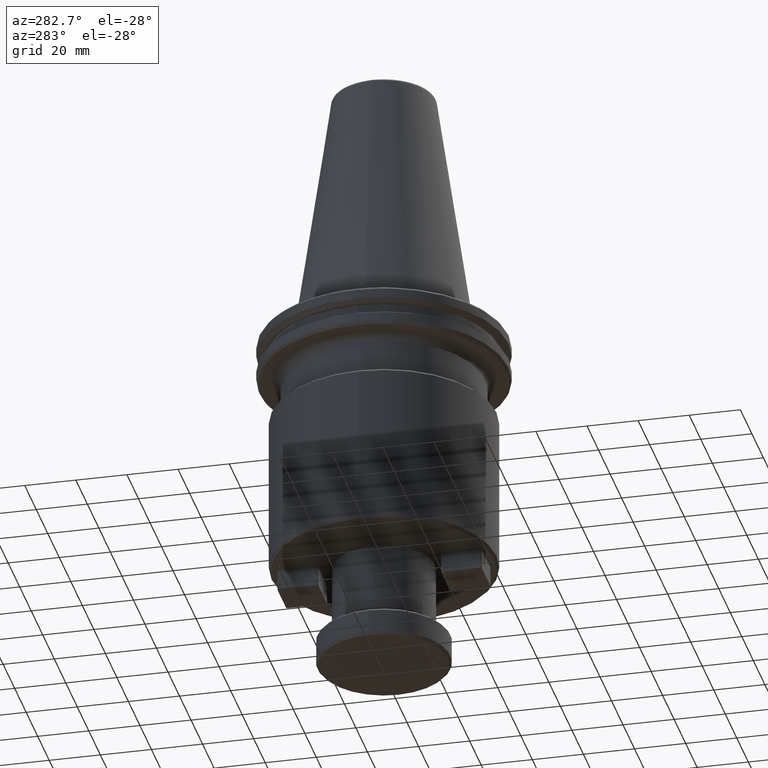
[diagram: clean part render]
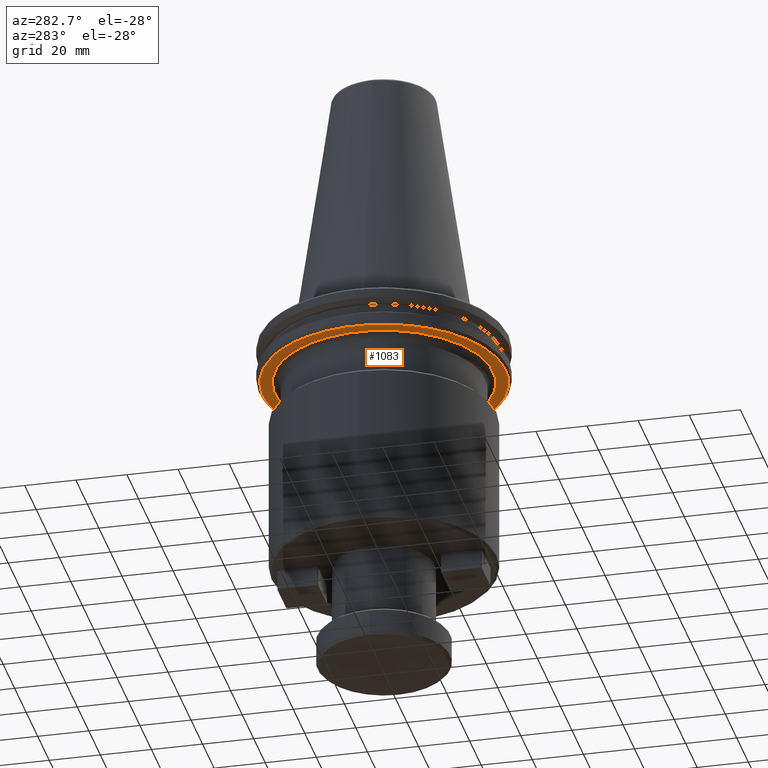
[diagram: same view with one face highlighted and labeled with its STEP entity id]
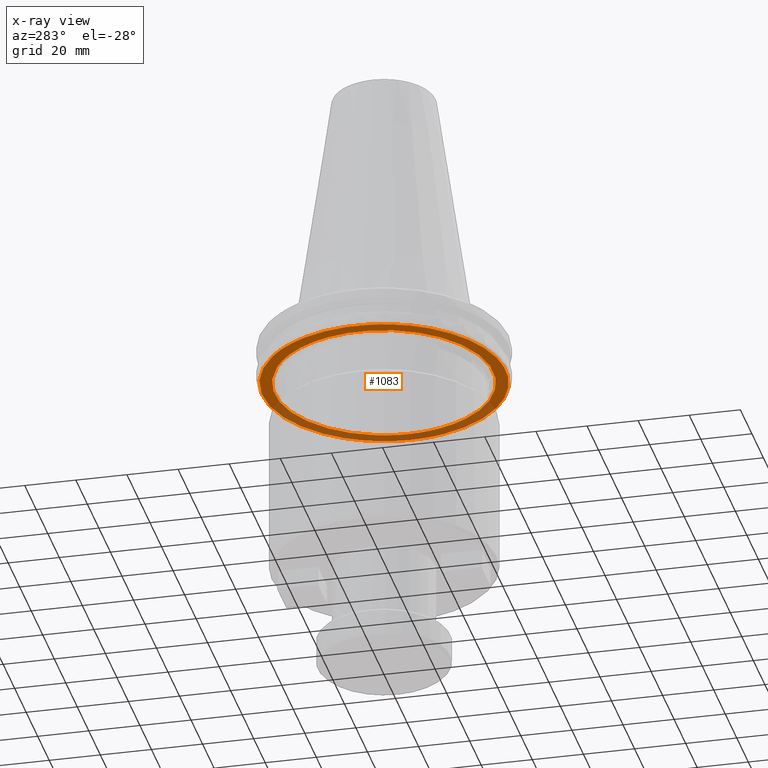
[diagram: x-ray of the same camera — body ghosted, the highlighted face saturated]
A machine part, auxiliary view. The second image highlights one B-rep face of the part: STEP entity #1083.
The next image is the same camera in x-ray: the body ghosted, the highlighted face saturated — about 36% of this face is hidden behind the body in this view.
In plain terms, the highlighted planar face has unit normal (0, 0, -1).
Its self-contained STEP definition (entity closure, byte-faithful):
#9 = CARTESIAN_POINT ( 'NONE',  ( 1.308120951141947600, 47.57091866719089500, -19.10000000000000900 ) ) ;
#14 = CARTESIAN_POINT ( 'NONE',  ( 19.53216097461157500, 43.39084235519819500, -19.10000000000000100 ) ) ;
#21 = EDGE_CURVE ( 'NONE', #2638, #4118, #694, .T. ) ;
#38 = CARTESIAN_POINT ( 'NONE',  ( -24.34035405470804400, -35.16348444868524600, -19.10000000000001200 ) ) ;
#45 = CARTESIAN_POINT ( 'NONE',  ( -13.10719197337290100, -40.69114334756636000, -19.10000000000000500 ) ) ;
#63 = CARTESIAN_POINT ( 'NONE',  ( 43.77572545363726400, 18.65419956364984300, -19.10000000000000100 ) ) ;
#67 = CARTESIAN_POINT ( 'NONE',  ( -35.11321675349054100, -24.38502773732895800, -19.09999999999999800 ) ) ;
#74 = CARTESIAN_POINT ( 'NONE',  ( -34.99395148945028200, -24.55587416569219900, -19.10000000000000900 ) ) ;
#80 = CARTESIAN_POINT ( 'NONE',  ( -33.24276643486475500, -26.92230129808137900, -19.10000000000000500 ) ) ;
#84 = CARTESIAN_POINT ( 'NONE',  ( -31.24625559330909400, -29.17845600040271800, -19.10000000000000500 ) ) ;
#91 = CARTESIAN_POINT ( 'NONE',  ( -36.93605622581585400, 30.00005778855096500, -19.10000000000000500 ) ) ;
#95 = CARTESIAN_POINT ( 'NONE',  ( -30.75028115606317100, -29.69854373433494400, -19.10000000000000500 ) ) ;
#100 = CARTESIAN_POINT ( 'NONE',  ( -37.87782567050951600, -19.85171631617539500, -19.10000000000000900 ) ) ;
#105 = CARTESIAN_POINT ( 'NONE',  ( -38.98676025535058200, 27.47508662005105500, -19.10000000000000500 ) ) ;
#107 = CARTESIAN_POINT ( 'NONE',  ( -40.75990645542658800, 24.76850955879668000, -19.10000000000000500 ) ) ;
#109 = CARTESIAN_POINT ( 'NONE',  ( -28.91818155370820900, -31.57123147113430400, -19.10000000000000500 ) ) ;
#111 = CARTESIAN_POINT ( 'NONE',  ( -38.38743598118532700, -18.81404928831977600, -19.10000000000001200 ) ) ;
#114 = CARTESIAN_POINT ( 'NONE',  ( -43.75094089819072700, 18.99202807367705100, -19.10000000000000500 ) ) ;
#118 = CARTESIAN_POINT ( 'NONE',  ( -38.43129521049379300, -18.72429301385500000, -19.10000000000000500 ) ) ;
#126 = CARTESIAN_POINT ( 'NONE',  ( -40.77303030190422800, -12.84999999999999600, -19.10000000000000500 ) ) ;
#128 = CARTESIAN_POINT ( 'NONE',  ( -45.81650991385544800, 12.85002475276266100, -19.10000000000000500 ) ) ;
#129 = CARTESIAN_POINT ( 'NONE',  ( -38.78011900583150900, -17.99429852049237500, -19.10000000000000500 ) ) ;
#130 = CARTESIAN_POINT ( 'NONE',  ( -39.90511139189728600, -15.40103122614322700, -19.10000000000000900 ) ) ;
#132 = CARTESIAN_POINT ( 'NONE',  ( -45.81650991385544800, 12.85002475276266100, -19.10000000000000500 ) ) ;
#146 = CARTESIAN_POINT ( 'NONE',  ( -38.57812664387181200, -18.42072283261540000, -19.10000000000000500 ) ) ;
#151 = CARTESIAN_POINT ( 'NONE',  ( -6.682308184501293300, -42.22461275955365100, -19.10000000000000500 ) ) ;
#198 = CARTESIAN_POINT ( 'NONE',  ( -40.44857928600070100, -13.87948257610260900, -19.10000000000000100 ) ) ;
#204 = CARTESIAN_POINT ( 'NONE',  ( -39.17168061750911100, -17.13648969315903500, -19.10000000000000500 ) ) ;
#209 = CARTESIAN_POINT ( 'NONE',  ( -7.407732407718368600, -42.10497084433016800, -19.10000000000000100 ) ) ;
#212 = CARTESIAN_POINT ( 'NONE',  ( -38.40169968781850700, -18.78491552254596200, -19.10000000000001200 ) ) ;
#214 = CARTESIAN_POINT ( 'NONE',  ( -36.93605622581585400, 30.00005778855096500, -19.10000000000000500 ) ) ;
#215 = CARTESIAN_POINT ( 'NONE',  ( -44.93810529641454800, 15.98161967227325800, -19.10000000000000100 ) ) ;
#236 = CARTESIAN_POINT ( 'NONE',  ( 41.24130619434603800, 23.73682857431735700, -19.10000000000000900 ) ) ;
#251 = CARTESIAN_POINT ( 'NONE',  ( 8.736225942364694000, 46.77551714111499600, -19.10000000000000900 ) ) ;
#255 = CARTESIAN_POINT ( 'NONE',  ( -36.04929304986325900, -22.99065513919183000, -19.10000000000000500 ) ) ;
#268 = CARTESIAN_POINT ( 'NONE',  ( -35.23294451998876300, -24.21233512092388200, -19.10000000000000100 ) ) ;
#286 = CARTESIAN_POINT ( 'NONE',  ( -34.29002783248878900, -25.55546331549743400, -19.10000000000000500 ) ) ;
#302 = CARTESIAN_POINT ( 'NONE',  ( -13.44903096726361200, -40.57983575164358600, -19.10000000000000500 ) ) ;
#307 = CARTESIAN_POINT ( 'NONE',  ( -31.92735953056225600, -28.43933888698136100, -19.09999999999999800 ) ) ;
#313 = CARTESIAN_POINT ( 'NONE',  ( 30.13914465955375700, -30.31859192305050500, -19.09999999999999800 ) ) ;
#314 = CIRCLE ( 'NONE', #2199, 42.75000000000000000 ) ;
#317 = CARTESIAN_POINT ( 'NONE',  ( -30.94933951625017000, -29.49106297450573100, -19.10000000000000900 ) ) ;
#320 = ORIENTED_EDGE ( 'NONE', *, *, #2697, .T. ) ;
#325 = CARTESIAN_POINT ( 'NONE',  ( 26.22101210160919700, -33.78434546427677500, -19.10000000000001200 ) ) ;
#327 = CARTESIAN_POINT ( 'NONE',  ( -30.65151194383874900, -29.80047660909688600, -19.10000000000000500 ) ) ;
#340 = CARTESIAN_POINT ( 'NONE',  ( -27.16131520220185200, -33.09474062243979400, -19.10000000000001200 ) ) ;
#361 = CARTESIAN_POINT ( 'NONE',  ( -22.89240081879527000, -36.13714124827903600, -19.10000000000000500 ) ) ;
#362 = CARTESIAN_POINT ( 'NONE',  ( -18.31278783882281800, -38.64620989973166600, -19.10000000000000100 ) ) ;
#374 = CARTESIAN_POINT ( 'NONE',  ( -40.77303030190423500, 12.84999999999999600, -19.10000000000000500 ) ) ;
#377 = CARTESIAN_POINT ( 'NONE',  ( -40.26814082729246300, 14.45201352898498100, -19.10000000000000100 ) ) ;
#380 = CARTESIAN_POINT ( 'NONE',  ( -39.67098268770774900, 16.01866406010090000, -19.09999999999999800 ) ) ;
#386 = CARTESIAN_POINT ( 'NONE',  ( -38.89537753258033300, 17.74136253500364200, -19.10000000000000500 ) ) ;
#389 = CARTESIAN_POINT ( 'NONE',  ( -38.80654519645969500, 17.93486227796686100, -19.10000000000000500 ) ) ;
#395 = CARTESIAN_POINT ( 'NONE',  ( 6.306516208792764600, -42.28228301106862100, -19.10000000000000100 ) ) ;
#396 = CARTESIAN_POINT ( 'NONE',  ( -38.62738141165510800, 18.31757950165020800, -19.10000000000000900 ) ) ;
#399 = CARTESIAN_POINT ( 'NONE',  ( -38.35448263633394100, 18.88946187623949100, -19.10000000000000100 ) ) ;
#401 = CARTESIAN_POINT ( 'NONE',  ( -40.77303030190423500, 12.84999999999999600, -19.10000000000000500 ) ) ;
#404 = CARTESIAN_POINT ( 'NONE',  ( -37.68864714045141500, 20.20849985706439600, -19.10000000000000900 ) ) ;
#411 = CARTESIAN_POINT ( 'NONE',  ( -37.06809382375242000, 21.31278230939982500, -19.10000000000000900 ) ) ;
#412 = CARTESIAN_POINT ( 'NONE',  ( 29.58979462928633500, 37.26625125388741100, -19.10000000000000100 ) ) ;
#415 = ORIENTED_EDGE ( 'NONE', *, *, #2138, .T. ) ;
#421 = CARTESIAN_POINT ( 'NONE',  ( -35.76053762052634300, 23.48625183909900800, -19.10000000000000100 ) ) ;
#423 = CARTESIAN_POINT ( 'NONE',  ( -34.80564638617131800, 24.87952405681922100, -19.10000000000000500 ) ) ;
#429 = CARTESIAN_POINT ( 'NONE',  ( 34.91299446006971900, 32.34739424200956400, -19.10000000000000500 ) ) ;
#435 = CARTESIAN_POINT ( 'NONE',  ( -33.63906394156913400, 26.38219716001825400, -19.10000000000000500 ) ) ;
#436 = CARTESIAN_POINT ( 'NONE',  ( -33.51001478952018400, 26.54591261727828300, -19.10000000000000900 ) ) ;
#440 = CARTESIAN_POINT ( 'NONE',  ( -33.24786635963603500, 26.87353536756146300, -19.10000000000000100 ) ) ;
#441 = CARTESIAN_POINT ( 'NONE',  ( -32.85116470859708200, 27.36191310787617000, -19.10000000000000500 ) ) ;
#446 = CARTESIAN_POINT ( 'NONE',  ( -30.45591075637043600, 30.00000000000000000, -19.10000000000000500 ) ) ;
#455 = CARTESIAN_POINT ( 'NONE',  ( 15.68501188145141100, -39.79789227718243400, -19.10000000000000500 ) ) ;
#456 = VERTEX_POINT ( 'NONE', #1295 ) ;
#457 = CARTESIAN_POINT ( 'NONE',  ( -31.90117447935034200, 28.48006647284002200, -19.10000000000000500 ) ) ;
#469 = CARTESIAN_POINT ( 'NONE',  ( -31.04514906544316200, 29.40180702148823900, -19.10000000000000900 ) ) ;
#481 = CARTESIAN_POINT ( 'NONE',  ( 45.81650991385544800, -12.85002475276266200, -19.10000000000000500 ) ) ;
#494 = CARTESIAN_POINT ( 'NONE',  ( 12.70284536994169700, -40.81917794413808300, -19.10000000000000100 ) ) ;
#509 = CARTESIAN_POINT ( 'NONE',  ( 45.48455499194914600, -14.03326405626546800, -19.10000000000000900 ) ) ;
#528 = CARTESIAN_POINT ( 'NONE',  ( 39.32368075819255900, -16.90778616084236300, -19.10000000000000100 ) ) ;
#571 = CARTESIAN_POINT ( 'NONE',  ( 24.71160396700230100, 40.66470845362184100, -19.10000000000000100 ) ) ;
#583 = CARTESIAN_POINT ( 'NONE',  ( 44.91986629713318300, -15.78375219156720500, -19.10000000000000500 ) ) ;
#602 = CARTESIAN_POINT ( 'NONE',  ( 44.14400760326996200, -17.78327443850042400, -19.10000000000000900 ) ) ;
#607 = CARTESIAN_POINT ( 'NONE',  ( 0.0000000000000000000, 0.0000000000000000000, -19.10000000000000500 ) ) ;
#624 = CARTESIAN_POINT ( 'NONE',  ( -6.473291491602237700, -42.25707160695336700, -19.10000000000000500 ) ) ;
#635 = CARTESIAN_POINT ( 'NONE',  ( 43.72681445219383500, -18.77235708423733500, -19.10000000000000500 ) ) ;
#640 = VERTEX_POINT ( 'NONE', #648 ) ;
#642 = CARTESIAN_POINT ( 'NONE',  ( 43.51090192561964900, -19.26422878767335700, -19.10000000000000500 ) ) ;
#648 = CARTESIAN_POINT ( 'NONE',  ( -45.81650991385551200, -12.85002475276243100, -19.10000000000000500 ) ) ;
#677 = CARTESIAN_POINT ( 'NONE',  ( -17.93959071322330000, 44.09276272953813700, -19.10000000000000500 ) ) ;
#692 = CARTESIAN_POINT ( 'NONE',  ( 5.505373260331320600, -42.39555874781223100, -19.10000000000000100 ) ) ;
#694 = CIRCLE ( 'NONE', #4070, 42.75000000000000000 ) ;
#697 = CARTESIAN_POINT ( 'NONE',  ( 43.40111667457354400, -19.50949723453327400, -19.10000000000000500 ) ) ;
#707 = CARTESIAN_POINT ( 'NONE',  ( 43.35367392674827900, -19.61446926786077700, -19.10000000000000900 ) ) ;
#712 = CARTESIAN_POINT ( 'NONE',  ( 43.32195833354290200, -19.68441884222873400, -19.10000000000000100 ) ) ;
#723 = CARTESIAN_POINT ( 'NONE',  ( 40.77303030190422800, -12.85000000000000000, -19.10000000000000500 ) ) ;
#729 = CARTESIAN_POINT ( 'NONE',  ( 43.30670207663200000, -19.71796403964760100, -19.10000000000000500 ) ) ;
#734 = CARTESIAN_POINT ( 'NONE',  ( 42.75923279348251100, -20.91773531037333100, -19.09999999999999800 ) ) ;
#737 = CARTESIAN_POINT ( 'NONE',  ( 21.41885718054948000, -37.07069513856576000, -19.10000000000000500 ) ) ;
#746 = CARTESIAN_POINT ( 'NONE',  ( 41.89551112233707600, -22.62542822165457000, -19.10000000000000900 ) ) ;
#747 = CARTESIAN_POINT ( 'NONE',  ( -3.155000903945456500, 47.48025286090142300, -19.10000000000000900 ) ) ;
#754 = CARTESIAN_POINT ( 'NONE',  ( 40.76988109011904300, -24.55223597831692900, -19.10000000000000900 ) ) ;
#762 = CARTESIAN_POINT ( 'NONE',  ( 40.17757738670629000, -25.49926469668998100, -19.10000000000000900 ) ) ;
#770 = CARTESIAN_POINT ( 'NONE',  ( 39.87405336317398500, -25.96868526588699000, -19.10000000000000500 ) ) ;
#776 = EDGE_CURVE ( 'NONE', #1558, #2638, #4376, .T. ) ;
#785 = CARTESIAN_POINT ( 'NONE',  ( 39.74239188769742300, -26.16898826911652500, -19.10000000000000100 ) ) ;
#793 = CARTESIAN_POINT ( 'NONE',  ( 39.65426651491182500, -26.30232866222242500, -19.10000000000000100 ) ) ;
#804 = CARTESIAN_POINT ( 'NONE',  ( 39.61125381756983900, -26.36706712308020400, -19.10000000000000900 ) ) ;
#815 = CARTESIAN_POINT ( 'NONE',  ( 38.83538641209704400, -27.52832894059677900, -19.10000000000000100 ) ) ;
#822 = CARTESIAN_POINT ( 'NONE',  ( 12.03304813070790900, -41.02327136606207600, -19.10000000000000500 ) ) ;
#838 = CARTESIAN_POINT ( 'NONE',  ( 37.67621538466903500, -29.11717796348844100, -19.10000000000000500 ) ) ;
#851 = CARTESIAN_POINT ( 'NONE',  ( 36.21214877211318100, -30.88232116246966900, -19.10000000000000500 ) ) ;
#857 = CARTESIAN_POINT ( 'NONE',  ( 17.52728552595517900, -38.99931467364024200, -19.10000000000000900 ) ) ;
#866 = CARTESIAN_POINT ( 'NONE',  ( -15.61238905962479400, 44.95090609541712500, -19.10000000000000500 ) ) ;
#868 = DIRECTION ( 'NONE',  ( -0.0000000000000000000, -0.0000000000000000000, 1.000000000000000000 ) ) ;
#871 = VERTEX_POINT ( 'NONE', #214 ) ;
#875 = CARTESIAN_POINT ( 'NONE',  ( 35.45219036236281300, -31.74276426336218600, -19.10000000000000100 ) ) ;
#882 = EDGE_CURVE ( 'NONE', #4764, #871, #2174, .T. ) ;
#889 = CARTESIAN_POINT ( 'NONE',  ( 35.06522988161949400, -32.16745368915894000, -19.10000000000000500 ) ) ;
#891 = CARTESIAN_POINT ( 'NONE',  ( 42.75000000000000000, 0.0000000000000000000, -19.10000000000000500 ) ) ;
#900 = CARTESIAN_POINT ( 'NONE',  ( 34.89789368790064800, -32.34827798778979300, -19.10000000000000100 ) ) ;
#913 = CARTESIAN_POINT ( 'NONE',  ( 34.78600378371339000, -32.46856408570325000, -19.10000000000000900 ) ) ;
#922 = CARTESIAN_POINT ( 'NONE',  ( 34.73067266395533200, -32.52774543433351800, -19.10000000000000900 ) ) ;
#931 = CARTESIAN_POINT ( 'NONE',  ( 32.84777691324600100, -34.53116215257544000, -19.10000000000000900 ) ) ;
#936 = EDGE_CURVE ( 'NONE', #1661, #3136, #2516, .T. ) ;
#959 = CARTESIAN_POINT ( 'NONE',  ( 30.87175777937803600, -36.30849107489942200, -19.10000000000000500 ) ) ;
#967 = CARTESIAN_POINT ( 'NONE',  ( -16.31507297257428800, 44.70483040319042100, -19.10000000000000100 ) ) ;
#979 = CARTESIAN_POINT ( 'NONE',  ( -15.14249711230291600, 45.11134788466759500, -19.09999999999999800 ) ) ;
#984 = CARTESIAN_POINT ( 'NONE',  ( 27.68499332086554400, -38.72449491405947000, -19.10000000000000500 ) ) ;
#997 = CARTESIAN_POINT ( 'NONE',  ( 26.04667072498329000, -39.86182647866130700, -19.10000000000000900 ) ) ;
#1009 = CARTESIAN_POINT ( 'NONE',  ( 39.55409234850913700, 26.48536274293576300, -19.10000000000000100 ) ) ;
#1016 = CARTESIAN_POINT ( 'NONE',  ( 34.36486976753514000, -25.43160489257260400, -19.10000000000000900 ) ) ;
#1017 = CARTESIAN_POINT ( 'NONE',  ( 43.89443439609017600, 18.37251416061661800, -19.10000000000000100 ) ) ;
#1021 = CARTESIAN_POINT ( 'NONE',  ( 24.05664872152509700, -41.06504018281828600, -19.10000000000000500 ) ) ;
#1040 = CARTESIAN_POINT ( 'NONE',  ( 23.04197630939713200, -41.63572875459376400, -19.10000000000000500 ) ) ;
#1052 = CARTESIAN_POINT ( 'NONE',  ( 22.52972475073340800, -41.91334347040581300, -19.10000000000000500 ) ) ;
#1054 = EDGE_CURVE ( 'NONE', #456, #3136, #3214, .T. ) ;
#1058 = CARTESIAN_POINT ( 'NONE',  ( 22.30913507860617900, -42.03066486930900700, -19.10000000000000900 ) ) ;
#1064 = DIRECTION ( 'NONE',  ( 1.000000000000000000, 0.0000000000000000000, 0.0000000000000000000 ) ) ;
#1073 = CARTESIAN_POINT ( 'NONE',  ( 22.16184123277849600, -42.10851106047894600, -19.10000000000000100 ) ) ;
#1083 = ADVANCED_FACE ( 'NONE', ( #2709, #2646 ), #4187, .T. ) ;
#1102 = AXIS2_PLACEMENT_3D ( 'NONE', #1746, #3068, #4176 ) ;
#1114 = CARTESIAN_POINT ( 'NONE',  ( 22.08702858398577000, -42.14779738270548400, -19.10000000000000500 ) ) ;
#1130 = CARTESIAN_POINT ( 'NONE',  ( 20.84887959194926700, -42.79392924822380500, -19.10000000000000100 ) ) ;
#1147 = CARTESIAN_POINT ( 'NONE',  ( 19.06919911914165800, -43.63110076013641200, -19.10000000000000500 ) ) ;
#1156 = CARTESIAN_POINT ( 'NONE',  ( 19.36869561264892800, 43.46430390230612800, -19.10000000000000100 ) ) ;
#1157 = CARTESIAN_POINT ( 'NONE',  ( 16.93742074005270800, -44.47652521781659400, -19.10000000000000500 ) ) ;
#1164 = CARTESIAN_POINT ( 'NONE',  ( 15.85766042697153300, -44.86641853676889700, -19.10000000000000500 ) ) ;
#1171 = CIRCLE ( 'NONE', #4607, 47.58440623600370100 ) ;
#1178 = CARTESIAN_POINT ( 'NONE',  ( 47.58440623600370100, 0.0000000000000000000, -19.10000000000000500 ) ) ;
#1181 = CARTESIAN_POINT ( 'NONE',  ( 37.47383417482909400, -20.58721821892454100, -19.10000000000000500 ) ) ;
#1188 = EDGE_CURVE ( 'NONE', #4764, #640, #2195, .T. ) ;
#1200 = CARTESIAN_POINT ( 'NONE',  ( 15.31431248954679500, -45.05316046877310000, -19.10000000000000100 ) ) ;
#1203 = CARTESIAN_POINT ( 'NONE',  ( 15.08070599188957500, -45.13143456945947900, -19.10000000000000500 ) ) ;
#1207 = CARTESIAN_POINT ( 'NONE',  ( -14.90863721726842800, 45.18917973414403400, -19.10000000000000500 ) ) ;
#1209 = CARTESIAN_POINT ( 'NONE',  ( 14.92480319436171000, -45.18322660194220900, -19.10000000000000500 ) ) ;
#1215 = CARTESIAN_POINT ( 'NONE',  ( 14.84463130699032800, -45.20962530651282000, -19.10000000000000500 ) ) ;
#1219 = CARTESIAN_POINT ( 'NONE',  ( 13.55299495754218400, -45.63134899766030400, -19.10000000000000900 ) ) ;
#1225 = CARTESIAN_POINT ( 'NONE',  ( 11.71142353892450500, -46.15177667591209600, -19.10000000000000500 ) ) ;
#1246 = CARTESIAN_POINT ( 'NONE',  ( 9.531275137181101100, -46.62778514758593900, -19.10000000000000100 ) ) ;
#1252 = CARTESIAN_POINT ( 'NONE',  ( 8.433288832970379900, -46.83300009518458000, -19.10000000000000500 ) ) ;
#1258 = CARTESIAN_POINT ( 'NONE',  ( 7.882317655030264300, -46.92741024692432500, -19.10000000000000500 ) ) ;
#1265 = CARTESIAN_POINT ( 'NONE',  ( 7.606337559601514400, -46.97256599227928600, -19.10000000000000500 ) ) ;
#1270 = CARTESIAN_POINT ( 'NONE',  ( 29.09442193513192300, -31.33182292883238800, -19.10000000000000900 ) ) ;
#1279 = VERTEX_POINT ( 'NONE', #3146 ) ;
#1280 = CARTESIAN_POINT ( 'NONE',  ( 37.03410230690259700, 29.88621448141576700, -19.10000000000000500 ) ) ;
#1281 = AXIS2_PLACEMENT_3D ( 'NONE', #3572, #3566, #3560 ) ;
#1282 = CARTESIAN_POINT ( 'NONE',  ( 7.487954410176620900, -46.99147931232109000, -19.10000000000000500 ) ) ;
#1294 = CARTESIAN_POINT ( 'NONE',  ( 7.409008762633419600, -47.00399060518159200, -19.10000000000001200 ) ) ;
#1295 = CARTESIAN_POINT ( 'NONE',  ( -30.00005778855096100, 36.93605622581585400, -19.10000000000000500 ) ) ;
#1302 = CARTESIAN_POINT ( 'NONE',  ( 7.367970511328298500, -47.01043969523494300, -19.10000000000000100 ) ) ;
#1311 = B_SPLINE_CURVE_WITH_KNOTS ( 'NONE', 3,
 ( #126, #198, #130, #204, #129, #146, #5010, #118, #212, #111, #100, #4935, #255, #4991, #268, #67, #2743, #74, #286, #80, #307, #84, #317, #95, #327, #109, #340, #38, #361, #1840, #3453, #3359, #3392, #3375, #362, #3399, #3407, #3386, #302, #3354, #45, #3597, #1812, #4996, #1340, #209, #2547, #151, #4849, #2363, #624, #3974, #1516, #3175, #4290, #4546, #692, #4715, #4681, #395, #1450, #1620, #2400, #1726, #3366, #822, #3506, #494, #3919, #2968, #5007, #455, #857, #2284, #4434, #3071, #2881, #737, #4606, #325, #2795, #1270, #3807, #313, #4530, #2067, #4389, #3276, #3458, #1016, #3923, #4800, #2875, #1638, #4591, #3356, #1181, #3581, #4119, #2821, #1374, #4054, #3907, #528, #4485, #723 ),
 .UNSPECIFIED., .F., .F.,
 ( 4, 1, 1, 1, 1, 1, 2, 2, 1, 1, 1, 1, 2, 2, 1, 1, 1, 2, 2, 2, 1, 1, 1, 2, 2, 1, 1, 1, 1, 2, 2, 1, 1, 1, 1, 1, 2, 2, 2, 1, 1, 1, 1, 1, 2, 2, 1, 1, 1, 1, 2, 2, 1, 1, 1, 2, 2, 2, 1, 1, 1, 2, 2, 1, 1, 1, 1, 2, 2, 1, 1, 1, 1, 1, 2, 2, 4 ),
 ( 0.0000000000000000000, 0.03124999999999741900, 0.04687499999999601700, 0.05468749999999531600, 0.05859374999999492800, 0.06054687499999476800, 0.06152343749999474000, 0.06249999999999470600, 0.09374999999999564200, 0.1093749999999960200, 0.1171874999999962000, 0.1210937499999962400, 0.1230468749999963100, 0.1249999999999963600, 0.1562499999999977000, 0.1718749999999984200, 0.1796874999999988300, 0.1835937499999990300, 0.1874999999999992000, 0.2500000000000015500, 0.2812500000000027200, 0.2968750000000033300, 0.3046875000000037200, 0.3085937500000038300, 0.3125000000000039400, 0.3437500000000047200, 0.3593750000000051100, 0.3671875000000053800, 0.3710937500000055000, 0.3730468750000055000, 0.3750000000000055000, 0.4062500000000054400, 0.4218750000000054400, 0.4296875000000055000, 0.4335937500000054400, 0.4355468750000054400, 0.4365234375000053800, 0.4375000000000053800, 0.5000000000000041100, 0.5312500000000034400, 0.5468750000000031100, 0.5546875000000028900, 0.5585937500000027800, 0.5605468750000027800, 0.5615234375000027800, 0.5625000000000027800, 0.5937500000000026600, 0.6093750000000025500, 0.6171875000000024400, 0.6210937500000024400, 0.6230468750000023300, 0.6250000000000023300, 0.6562500000000014400, 0.6718750000000010000, 0.6796875000000007800, 0.6835937500000006700, 0.6875000000000005600, 0.7499999999999984500, 0.7812499999999974500, 0.7968749999999968900, 0.8046874999999966700, 0.8085937499999965600, 0.8124999999999964500, 0.8437499999999963400, 0.8593749999999962300, 0.8671874999999961100, 0.8710937499999960000, 0.8730468749999960000, 0.8749999999999961100, 0.9062499999999971100, 0.9218749999999975600, 0.9296874999999977800, 0.9335937499999978900, 0.9355468749999981100, 0.9365234374999981100, 0.9374999999999981100, 1.000000000000000000 ),
 .UNSPECIFIED. ) ;
#1318 = CARTESIAN_POINT ( 'NONE',  ( 4.901693833008885700, -47.39496812887865900, -19.10000000000000900 ) ) ;
#1319 = CARTESIAN_POINT ( 'NONE',  ( -10.82718688243038800, 46.37940535234366000, -19.10000000000000500 ) ) ;
#1340 = CARTESIAN_POINT ( 'NONE',  ( -8.371099488441254600, -41.92906503978433400, -19.10000000000000900 ) ) ;
#1347 = CARTESIAN_POINT ( 'NONE',  ( 2.457672413238252100, -47.58428782218785400, -19.10000000000000100 ) ) ;
#1358 = CARTESIAN_POINT ( 'NONE',  ( -1.228836206619335200, -47.58432795148220200, -19.10000000000000100 ) ) ;
#1359 = AXIS2_PLACEMENT_3D ( 'NONE', #3404, #868, #3765 ) ;
#1374 = CARTESIAN_POINT ( 'NONE',  ( 38.31001597225865400, -18.97119868213960100, -19.10000000000000100 ) ) ;
#1380 = CARTESIAN_POINT ( 'NONE',  ( -3.066716835733800800, -47.51334310158583200, -19.10000000000000500 ) ) ;
#1391 = CARTESIAN_POINT ( 'NONE',  ( 20.63973171907657900, 42.88620113813023900, -19.10000000000000900 ) ) ;
#1404 = CARTESIAN_POINT ( 'NONE',  ( 24.18776650256299000, 40.97956592006652000, -19.10000000000000500 ) ) ;
#1409 = CARTESIAN_POINT ( 'NONE',  ( -5.201506961608904700, -47.30626884292213700, -19.10000000000000500 ) ) ;
#1428 = CARTESIAN_POINT ( 'NONE',  ( -6.266551039190164700, -47.17166706347749300, -19.10000000000000500 ) ) ;
#1434 = CARTESIAN_POINT ( 'NONE',  ( -6.798485331641737500, -47.09660001122696100, -19.10000000000000500 ) ) ;
#1450 = CARTESIAN_POINT ( 'NONE',  ( 6.373236458107700600, -42.27227753364334000, -19.10000000000000500 ) ) ;
#1457 = CARTESIAN_POINT ( 'NONE',  ( -7.064305541282752900, -47.05712494446964200, -19.10000000000000500 ) ) ;
#1476 = CARTESIAN_POINT ( 'NONE',  ( -7.178197001860739900, -47.03979101429536100, -19.10000000000000900 ) ) ;
#1487 = CARTESIAN_POINT ( 'NONE',  ( -7.254117645265835400, -47.02814260653002500, -19.10000000000000900 ) ) ;
#1490 = B_SPLINE_CURVE_WITH_KNOTS ( 'NONE', 3,
 ( #481, #509, #583, #602, #635, #642, #697, #707, #712, #729, #734, #746, #754, #762, #770, #785, #793, #804, #815, #838, #851, #875, #889, #900, #913, #922, #931, #959, #984, #997, #1021, #1040, #1052, #1058, #1073, #1114, #1130, #1147, #1157, #1164, #1200, #1203, #1209, #1215, #1219, #1225, #1246, #1252, #1258, #1265, #1282, #1294, #1302, #1318, #1347, #1358, #1380, #1409, #1428, #1434, #1457, #1476, #1487, #1494, #1507, #1538, #1551, #1566, #1572, #1599, #1614, #1626, #1632, #1643, #1648, #1653, #1662, #1670, #1677, #1695, #1702, #1714, #1719, #1740, #1761, #1771, #1818, #1850, #1872, #1884, #1895, #1899, #1917, #1943, #1967, #1985, #2000, #2007, #2037, #2042, #2053, #2076, #2082, #2093, #2102, #2112, #2116, #2123, #2136, #2152 ),
 .UNSPECIFIED., .F., .F.,
 ( 4, 1, 1, 1, 1, 1, 2, 2, 1, 1, 1, 1, 2, 2, 1, 1, 1, 1, 2, 2, 2, 1, 1, 1, 1, 2, 2, 1, 1, 1, 1, 2, 2, 1, 1, 1, 1, 1, 2, 2, 2, 1, 1, 1, 1, 1, 2, 2, 1, 1, 1, 1, 2, 2, 1, 1, 1, 1, 2, 2, 2, 1, 1, 1, 1, 2, 2, 1, 1, 1, 1, 2, 2, 1, 1, 1, 1, 1, 2, 2, 4 ),
 ( 0.0000000000000000000, 0.03125000000000417700, 0.04687500000000621000, 0.05468750000000715400, 0.05859375000000766700, 0.06054687500000788300, 0.06152343750000799400, 0.06250000000000810500, 0.09375000000001181000, 0.1093750000000136700, 0.1171875000000146500, 0.1210937500000151000, 0.1230468750000153600, 0.1250000000000156300, 0.1562500000000194800, 0.1718750000000215100, 0.1796875000000226500, 0.1835937500000231800, 0.1855468750000234500, 0.1875000000000237000, 0.2500000000000278100, 0.2812500000000299200, 0.2968750000000309200, 0.3046875000000314700, 0.3085937500000317000, 0.3105468750000317500, 0.3125000000000317500, 0.3437500000000320300, 0.3593750000000321400, 0.3671875000000322000, 0.3710937500000322500, 0.3730468750000322000, 0.3750000000000322000, 0.4062500000000324200, 0.4218750000000325300, 0.4296875000000325900, 0.4335937500000325900, 0.4355468750000325900, 0.4365234375000325900, 0.4375000000000325900, 0.5000000000000327500, 0.5312500000000328600, 0.5468750000000328600, 0.5546875000000329700, 0.5585937500000329700, 0.5605468750000329700, 0.5615234375000329700, 0.5625000000000329700, 0.5937500000000315300, 0.6093750000000308600, 0.6171875000000304200, 0.6210937500000303100, 0.6230468750000302000, 0.6250000000000300900, 0.6562500000000285300, 0.6718750000000277600, 0.6796875000000273100, 0.6835937500000270900, 0.6855468750000269800, 0.6875000000000269800, 0.7500000000000249800, 0.7812500000000239800, 0.7968750000000233100, 0.8046875000000230900, 0.8085937500000229800, 0.8105468750000227600, 0.8125000000000225400, 0.8437500000000195400, 0.8593750000000181000, 0.8671875000000172100, 0.8710937500000168800, 0.8730468750000166500, 0.8750000000000164300, 0.9062500000000141000, 0.9218750000000128800, 0.9296875000000122100, 0.9335937500000118800, 0.9355468750000116600, 0.9365234375000116600, 0.9375000000000115500, 1.000000000000000000 ),
 .UNSPECIFIED. ) ;
#1494 = CARTESIAN_POINT ( 'NONE',  ( -7.290541769874658400, -47.02251111249497500, -19.10000000000000500 ) ) ;
#1507 = CARTESIAN_POINT ( 'NONE',  ( -8.593580539630478300, -46.81937647076278400, -19.10000000000000900 ) ) ;
#1516 = CARTESIAN_POINT ( 'NONE',  ( -2.158624882671453800, -42.74997353264751600, -19.10000000000000500 ) ) ;
#1517 = CARTESIAN_POINT ( 'NONE',  ( 2.176018877763047600, 47.53568396421928100, -19.10000000000000900 ) ) ;
#1538 = CARTESIAN_POINT ( 'NONE',  ( -10.47107321257775500, -46.44890181901310900, -19.10000000000000900 ) ) ;
#1551 = CARTESIAN_POINT ( 'NONE',  ( -12.63026754929555500, -45.88542074854636600, -19.10000000000001200 ) ) ;
#1558 = VERTEX_POINT ( 'NONE', #1742 ) ;
#1566 = CARTESIAN_POINT ( 'NONE',  ( -13.70206127222429300, -45.57086505245657500, -19.09999999999999800 ) ) ;
#1572 = CARTESIAN_POINT ( 'NONE',  ( -14.23600727233110200, -45.40538341419763700, -19.10000000000000500 ) ) ;
#1599 = CARTESIAN_POINT ( 'NONE',  ( -14.46442323065742200, -45.33270475704078000, -19.10000000000000900 ) ) ;
#1614 = CARTESIAN_POINT ( 'NONE',  ( -14.61660763804841400, -45.28386166225933400, -19.10000000000000500 ) ) ;
#1620 = CARTESIAN_POINT ( 'NONE',  ( 6.405315774874599000, -42.26742979715108800, -19.10000000000000500 ) ) ;
#1621 = DIRECTION ( 'NONE',  ( 1.000000000000000000, 0.0000000000000000000, 0.0000000000000000000 ) ) ;
#1626 = CARTESIAN_POINT ( 'NONE',  ( -14.69055632917383200, -45.25992943446075100, -19.10000000000000900 ) ) ;
#1632 = CARTESIAN_POINT ( 'NONE',  ( -16.01819460261142300, -44.82648295049219200, -19.10000000000000100 ) ) ;
#1638 = CARTESIAN_POINT ( 'NONE',  ( 34.91220208667599700, -24.67195738646449500, -19.10000000000000100 ) ) ;
#1643 = CARTESIAN_POINT ( 'NONE',  ( -17.86104397993747700, -44.13944229614413900, -19.10000000000000900 ) ) ;
#1648 = CARTESIAN_POINT ( 'NONE',  ( -19.95597383139069700, -43.20644150488462300, -19.10000000000000500 ) ) ;
#1653 = CARTESIAN_POINT ( 'NONE',  ( -20.98967348492719500, -42.70707776895817200, -19.10000000000000900 ) ) ;
#1661 = VERTEX_POINT ( 'NONE', #1178 ) ;
#1662 = CARTESIAN_POINT ( 'NONE',  ( -21.50308199364791100, -42.44918006592077100, -19.10000000000000100 ) ) ;
#1670 = CARTESIAN_POINT ( 'NONE',  ( -21.72237678637516500, -42.33689194281742400, -19.10000000000000500 ) ) ;
#1674 = EDGE_LOOP ( 'NONE', ( #2525, #415, #3164, #3577, #320, #4185, #2006 ) ) ;
#1677 = CARTESIAN_POINT ( 'NONE',  ( -21.86840944257202300, -42.26164196384021900, -19.09999999999999800 ) ) ;
#1688 = CARTESIAN_POINT ( 'NONE',  ( -30.00005778855096100, 36.93605622581585400, -19.10000000000000500 ) ) ;
#1695 = CARTESIAN_POINT ( 'NONE',  ( -21.94033403670224300, -42.22434829679992400, -19.10000000000000500 ) ) ;
#1702 = CARTESIAN_POINT ( 'NONE',  ( -24.37778840664681100, -40.95242410592162900, -19.10000000000000500 ) ) ;
#1706 = CARTESIAN_POINT ( 'NONE',  ( -25.44784265904079100, 40.20793179859312300, -19.09999999999999400 ) ) ;
#1714 = CARTESIAN_POINT ( 'NONE',  ( -26.62270247519752400, -39.52978200592752200, -19.10000000000000500 ) ) ;
#1719 = CARTESIAN_POINT ( 'NONE',  ( -29.80952097295648400, -37.11384944854527400, -19.10000000000000100 ) ) ;
#1726 = CARTESIAN_POINT ( 'NONE',  ( 9.195626348172695000, -41.77574992057521500, -19.10000000000000500 ) ) ;
#1740 = CARTESIAN_POINT ( 'NONE',  ( -31.34702148197052200, -35.84352815055594700, -19.10000000000000500 ) ) ;
#1742 = CARTESIAN_POINT ( 'NONE',  ( -30.45591075637043600, 30.00000000000000000, -19.10000000000000500 ) ) ;
#1746 = CARTESIAN_POINT ( 'NONE',  ( 0.0000000000000000000, 0.0000000000000000000, -19.10000000000000500 ) ) ;
#1756 = EDGE_LOOP ( 'NONE', ( #3950, #4343, #4247, #4672, #2236, #1809, #4180 ) ) ;
#1761 = CARTESIAN_POINT ( 'NONE',  ( -33.04293178105577800, -34.25236535246319400, -19.10000000000000500 ) ) ;
#1771 = CARTESIAN_POINT ( 'NONE',  ( -33.86642685690726800, -33.42950363247386000, -19.10000000000000500 ) ) ;
#1783 = CARTESIAN_POINT ( 'NONE',  ( -12.76496267438223200, 45.88395211695184600, -19.09999999999999800 ) ) ;
#1809 = ORIENTED_EDGE ( 'NONE', *, *, #2911, .F. ) ;
#1812 = CARTESIAN_POINT ( 'NONE',  ( -11.90199088745424300, -41.07508938721112200, -19.10000000000000900 ) ) ;
#1818 = CARTESIAN_POINT ( 'NONE',  ( -34.27205937641024000, -33.01125269224347400, -19.10000000000000500 ) ) ;
#1840 = CARTESIAN_POINT ( 'NONE',  ( -21.13754488477347200, -37.16682273246294700, -19.10000000000000500 ) ) ;
#1850 = CARTESIAN_POINT ( 'NONE',  ( -34.44459152367805600, -32.83054084352278300, -19.09999999999999800 ) ) ;
#1872 = CARTESIAN_POINT ( 'NONE',  ( -34.55932176383648600, -32.70974151198348100, -19.10000000000000900 ) ) ;
#1884 = CARTESIAN_POINT ( 'NONE',  ( -34.61735141641463500, -32.64831751860668200, -19.10000000000000500 ) ) ;
#1894 = CARTESIAN_POINT ( 'NONE',  ( -20.42700269620342000, 42.97696412136785700, -19.09999999999999800 ) ) ;
#1895 = CARTESIAN_POINT ( 'NONE',  ( -35.57383602576560100, -31.63065524384346700, -19.10000000000000500 ) ) ;
#1899 = CARTESIAN_POINT ( 'NONE',  ( -36.86050155004882400, -30.14317060407183700, -19.10000000000000500 ) ) ;
#1917 = CARTESIAN_POINT ( 'NONE',  ( -38.25019637277248600, -28.31889818160394900, -19.10000000000001200 ) ) ;
#1923 = CARTESIAN_POINT ( 'NONE',  ( 18.98643513276526600, 43.63351049520797900, -19.10000000000000500 ) ) ;
#1943 = CARTESIAN_POINT ( 'NONE',  ( -38.91719004523266500, -27.38454355135305100, -19.10000000000000500 ) ) ;
#1967 = CARTESIAN_POINT ( 'NONE',  ( -39.24372344673732000, -26.91181163147338400, -19.10000000000000900 ) ) ;
#1985 = CARTESIAN_POINT ( 'NONE',  ( -39.38217416851242100, -26.70802196479191400, -19.10000000000000500 ) ) ;
#1992 = CARTESIAN_POINT ( 'NONE',  ( 29.39637043276513900, 37.41901030422590700, -19.10000000000000900 ) ) ;
#1996 = VERTEX_POINT ( 'NONE', #2392 ) ;
#2000 = CARTESIAN_POINT ( 'NONE',  ( -39.47414305756605300, -26.57189768201595800, -19.10000000000000500 ) ) ;
#2006 = ORIENTED_EDGE ( 'NONE', *, *, #3978, .T. ) ;
#2007 = CARTESIAN_POINT ( 'NONE',  ( -39.52121115034933800, -26.50183329894741400, -19.10000000000000500 ) ) ;
#2012 = CARTESIAN_POINT ( 'NONE',  ( 45.81650991385544800, 12.85002475276267100, -19.10000000000000500 ) ) ;
#2026 = CARTESIAN_POINT ( 'NONE',  ( 40.77303030190422800, -12.85000000000000000, -19.10000000000000500 ) ) ;
#2037 = CARTESIAN_POINT ( 'NONE',  ( -40.27606908763598200, -25.37207012671989000, -19.10000000000000100 ) ) ;
#2042 = CARTESIAN_POINT ( 'NONE',  ( -41.27447217703553400, -23.73945825332458500, -19.10000000000000900 ) ) ;
#2045 = CARTESIAN_POINT ( 'NONE',  ( 35.92102204145000900, 31.23633589274896800, -19.10000000000000500 ) ) ;
#2053 = CARTESIAN_POINT ( 'NONE',  ( -42.32153804860536900, -21.76885322456214000, -19.10000000000000100 ) ) ;
#2067 = CARTESIAN_POINT ( 'NONE',  ( 30.44893599903340600, -30.00742126809105800, -19.10000000000000500 ) ) ;
#2076 = CARTESIAN_POINT ( 'NONE',  ( -42.81563655120788100, -20.76707791606394700, -19.10000000000000900 ) ) ;
#2078 = DIRECTION ( 'NONE',  ( -0.0000000000000000000, -0.0000000000000000000, 1.000000000000000000 ) ) ;
#2082 = CARTESIAN_POINT ( 'NONE',  ( -43.05532719421356800, -20.26207206328560400, -19.10000000000000900 ) ) ;
#2093 = CARTESIAN_POINT ( 'NONE',  ( -43.17333286364247200, -20.00853958726410300, -19.10000000000000500 ) ) ;
#2102 = CARTESIAN_POINT ( 'NONE',  ( -43.22351251081048000, -19.89966219404798100, -19.10000000000000900 ) ) ;
#2112 = CARTESIAN_POINT ( 'NONE',  ( -43.25687800644275400, -19.82702823906425800, -19.10000000000000500 ) ) ;
#2116 = CARTESIAN_POINT ( 'NONE',  ( -43.27416862306094500, -19.78925870223190100, -19.10000000000000500 ) ) ;
#2123 = CARTESIAN_POINT ( 'NONE',  ( -44.31049451720483700, -17.51829147052863800, -19.10000000000000500 ) ) ;
#2124 = CARTESIAN_POINT ( 'NONE',  ( 40.48202334443599400, 25.01817877471203400, -19.10000000000000500 ) ) ;
#2136 = CARTESIAN_POINT ( 'NONE',  ( -45.15259770387599800, -15.21685122225497000, -19.10000000000000100 ) ) ;
#2138 = EDGE_CURVE ( 'NONE', #1279, #1558, #4953, .T. ) ;
#2143 = CARTESIAN_POINT ( 'NONE',  ( 37.95643437415584000, 28.69908590947580500, -19.10000000000000500 ) ) ;
#2152 = CARTESIAN_POINT ( 'NONE',  ( -45.81650991385551200, -12.85002475276243100, -19.10000000000000500 ) ) ;
#2165 = CARTESIAN_POINT ( 'NONE',  ( 40.77303030190422800, 12.85000000000000000, -19.10000000000000500 ) ) ;
#2174 = B_SPLINE_CURVE_WITH_KNOTS ( 'NONE', 3,
 ( #132, #215, #114, #107, #105, #91 ),
 .UNSPECIFIED., .F., .F.,
 ( 4, 2, 4 ),
 ( 0.0000000000000000000, 0.5000000000000000000, 1.000000000000000000 ),
 .UNSPECIFIED. ) ;
#2195 = CIRCLE ( 'NONE', #1281, 47.58440623600370100 ) ;
#2199 = AXIS2_PLACEMENT_3D ( 'NONE', #607, #3564, #1064 ) ;
#2208 = CARTESIAN_POINT ( 'NONE',  ( 40.77303030190422800, 12.85000000000000000, -19.10000000000000500 ) ) ;
#2214 = CARTESIAN_POINT ( 'NONE',  ( 44.67508573890287200, 16.49425599764650100, -19.10000000000000500 ) ) ;
#2236 = ORIENTED_EDGE ( 'NONE', *, *, #936, .F. ) ;
#2239 = CARTESIAN_POINT ( 'NONE',  ( 40.50704309492026300, 13.69397700002148400, -19.10000000000000900 ) ) ;
#2264 = CARTESIAN_POINT ( 'NONE',  ( -6.393095184566051100, 47.17156811542699300, -19.10000000000000900 ) ) ;
#2284 = CARTESIAN_POINT ( 'NONE',  ( 18.43695172611928300, -38.57187568965606100, -19.10000000000000500 ) ) ;
#2285 = CARTESIAN_POINT ( 'NONE',  ( 32.82499425408121100, 34.50792617421171100, -19.10000000000000500 ) ) ;
#2292 = CARTESIAN_POINT ( 'NONE',  ( 5.478699833393303500, 47.28562886859818800, -19.10000000000000100 ) ) ;
#2307 = CARTESIAN_POINT ( 'NONE',  ( -4.653575368256655400, 47.36089933689269300, -19.10000000000000500 ) ) ;
#2320 = CARTESIAN_POINT ( 'NONE',  ( -25.54871977331017500, 40.14390888365007000, -19.10000000000000500 ) ) ;
#2345 = CARTESIAN_POINT ( 'NONE',  ( 40.06964449671005500, 14.94523177611391400, -19.10000000000000900 ) ) ;
#2357 = CARTESIAN_POINT ( 'NONE',  ( 39.49211500359653800, 16.37928524799378100, -19.10000000000000500 ) ) ;
#2363 = CARTESIAN_POINT ( 'NONE',  ( -6.509223302208209100, -42.25155255156985100, -19.09999999999999800 ) ) ;
#2364 = CARTESIAN_POINT ( 'NONE',  ( 40.92895922265621100, 24.27337234609990800, -19.10000000000000500 ) ) ;
#2369 = CARTESIAN_POINT ( 'NONE',  ( -29.25803840789287200, 37.53861819214704800, -19.09999999999999800 ) ) ;
#2381 = CARTESIAN_POINT ( 'NONE',  ( 43.60702238820626100, 19.04732045925824500, -19.10000000000000500 ) ) ;
#2382 = CARTESIAN_POINT ( 'NONE',  ( 39.18654247490604800, 17.08987604221005100, -19.10000000000000500 ) ) ;
#2388 = CARTESIAN_POINT ( 'NONE',  ( 39.02955426502735700, 17.44356245388727800, -19.10000000000000900 ) ) ;
#2392 = CARTESIAN_POINT ( 'NONE',  ( 45.81650991385544800, -12.85002475276266200, -19.10000000000000500 ) ) ;
#2394 = CARTESIAN_POINT ( 'NONE',  ( -26.74803097108493000, 39.36004225602716400, -19.10000000000000500 ) ) ;
#2400 = CARTESIAN_POINT ( 'NONE',  ( 7.548177100354235900, -42.09329329815326300, -19.10000000000001200 ) ) ;
#2402 = AXIS2_PLACEMENT_3D ( 'NONE', #2830, #2827, #2824 ) ;
#2404 = CARTESIAN_POINT ( 'NONE',  ( 38.96137318675077000, 17.59479756201375300, -19.10000000000000900 ) ) ;
#2409 = CARTESIAN_POINT ( 'NONE',  ( 19.64105775858945100, 43.34165811582305100, -19.10000000000000900 ) ) ;
#2410 = CARTESIAN_POINT ( 'NONE',  ( 38.91571904192191100, 17.69554434907753700, -19.10000000000000900 ) ) ;
#2426 = CARTESIAN_POINT ( 'NONE',  ( 38.89335912691952000, 17.74464052631436000, -19.10000000000000500 ) ) ;
#2433 = CARTESIAN_POINT ( 'NONE',  ( 38.49225485743622200, 18.62074712534967300, -19.10000000000000500 ) ) ;
#2446 = CARTESIAN_POINT ( 'NONE',  ( 37.88785760591643000, 19.83726895478775600, -19.10000000000000500 ) ) ;
#2464 = CARTESIAN_POINT ( 'NONE',  ( 37.11599577829540000, 21.22095896754197900, -19.10000000000000500 ) ) ;
#2469 = CARTESIAN_POINT ( 'NONE',  ( 36.71338193927290700, 21.90390761018819200, -19.10000000000000500 ) ) ;
#2487 = CARTESIAN_POINT ( 'NONE',  ( 36.53725823857497800, 22.19469352195139000, -19.09999999999999800 ) ) ;
#2505 = CARTESIAN_POINT ( 'NONE',  ( 36.41904801309957700, 22.38812716009204700, -19.10000000000000500 ) ) ;
#2512 = CARTESIAN_POINT ( 'NONE',  ( 36.36053528810776200, 22.48304130132654100, -19.10000000000000500 ) ) ;
#2516 = CIRCLE ( 'NONE', #1102, 47.58440623600370100 ) ;
#2523 = CARTESIAN_POINT ( 'NONE',  ( 35.81253304611957600, 23.36399768251217100, -19.10000000000000100 ) ) ;
#2525 = ORIENTED_EDGE ( 'NONE', *, *, #3047, .T. ) ;
#2528 = CARTESIAN_POINT ( 'NONE',  ( 35.04545059140294000, 24.51270491909301800, -19.10000000000000900 ) ) ;
#2532 = CARTESIAN_POINT ( 'NONE',  ( 34.08679866311854300, 25.80753613635404900, -19.10000000000000100 ) ) ;
#2538 = CARTESIAN_POINT ( 'NONE',  ( 33.66229303718630200, 26.35275082401952300, -19.10000000000000500 ) ) ;
#2542 = CARTESIAN_POINT ( 'NONE',  ( 16.66931579828063500, 44.58704690948568600, -19.10000000000000500 ) ) ;
#2543 = CARTESIAN_POINT ( 'NONE',  ( 33.37625488667045900, 26.71406884315760500, -19.10000000000000900 ) ) ;
#2547 = CARTESIAN_POINT ( 'NONE',  ( -6.924392345828403400, -42.18590235335400300, -19.10000000000000100 ) ) ;
#2553 = CARTESIAN_POINT ( 'NONE',  ( 33.23290945848209100, 26.89219322866556200, -19.10000000000000100 ) ) ;
#2578 = CARTESIAN_POINT ( 'NONE',  ( 31.90771055896072300, 28.51179700071179100, -19.10000000000000100 ) ) ;
#2584 = CARTESIAN_POINT ( 'NONE',  ( 30.64042746163203300, 29.86946536362291800, -19.10000000000000500 ) ) ;
#2594 = CARTESIAN_POINT ( 'NONE',  ( 28.60774539551095000, 31.78089673700027600, -19.10000000000000100 ) ) ;
#2601 = CARTESIAN_POINT ( 'NONE',  ( 27.56239462020313300, 32.70162655701689400, -19.10000000000000500 ) ) ;
#2615 = CARTESIAN_POINT ( 'NONE',  ( 26.29205166674458400, 33.71458608036017800, -19.10000000000000900 ) ) ;
#2638 = VERTEX_POINT ( 'NONE', #401 ) ;
#2643 = CARTESIAN_POINT ( 'NONE',  ( 25.73674031906247000, 34.13559189036239900, -19.10000000000000500 ) ) ;
#2646 = FACE_BOUND ( 'NONE', #1674, .T. ) ;
#2654 = CARTESIAN_POINT ( 'NONE',  ( 25.36411527542044900, 34.41334694147455100, -19.10000000000000500 ) ) ;
#2661 = CARTESIAN_POINT ( 'NONE',  ( 25.17493047477451300, 34.55196514481280400, -19.10000000000000100 ) ) ;
#2680 = CARTESIAN_POINT ( 'NONE',  ( 24.23959817088957500, 35.22578321701225700, -19.10000000000000900 ) ) ;
#2694 = CARTESIAN_POINT ( 'NONE',  ( 23.09336927822789300, 35.99656408247808100, -19.10000000000000500 ) ) ;
#2697 = EDGE_CURVE ( 'NONE', #4118, #3613, #1311, .T. ) ;
#2701 = CARTESIAN_POINT ( 'NONE',  ( 21.71439951278972600, 36.82965698846800300, -19.10000000000000500 ) ) ;
#2705 = CARTESIAN_POINT ( 'NONE',  ( -3.905819226031873400, 47.42442718986811200, -19.10000000000000500 ) ) ;
#2709 = FACE_OUTER_BOUND ( 'NONE', #1756, .T. ) ;
#2718 = CIRCLE ( 'NONE', #2919, 47.58440623600370100 ) ;
#2724 = CARTESIAN_POINT ( 'NONE',  ( 21.01448894907074900, 37.22966558219958000, -19.10000000000000900 ) ) ;
#2733 = CARTESIAN_POINT ( 'NONE',  ( 12.58557862074794000, 45.92953526851350400, -19.10000000000000500 ) ) ;
#2735 = CARTESIAN_POINT ( 'NONE',  ( 20.71229320440550100, 37.39755400967095500, -19.10000000000000500 ) ) ;
#2738 = CARTESIAN_POINT ( 'NONE',  ( 20.51033291362867000, 37.50869211087741900, -19.10000000000000900 ) ) ;
#2743 = CARTESIAN_POINT ( 'NONE',  ( -35.03310238078272200, -24.49998156776369700, -19.10000000000000900 ) ) ;
#2765 = CARTESIAN_POINT ( 'NONE',  ( -23.25549417440079800, 41.53467180138673600, -19.10000000000000500 ) ) ;
#2774 = CARTESIAN_POINT ( 'NONE',  ( 20.40738048351181900, 37.56479812319642500, -19.10000000000000500 ) ) ;
#2785 = CARTESIAN_POINT ( 'NONE',  ( 27.00962507593165500, 39.19796925020254000, -19.10000000000000900 ) ) ;
#2787 = CARTESIAN_POINT ( 'NONE',  ( 19.50960751407216900, 38.04945544222840700, -19.10000000000001200 ) ) ;
#2795 = CARTESIAN_POINT ( 'NONE',  ( 27.58487496184268300, -32.69601911834865900, -19.10000000000000900 ) ) ;
#2821 = CARTESIAN_POINT ( 'NONE',  ( 38.26333930669143500, -19.06536205971563900, -19.10000000000000500 ) ) ;
#2824 = DIRECTION ( 'NONE',  ( 1.000000000000000000, 0.0000000000000000000, 0.0000000000000000000 ) ) ;
#2827 = DIRECTION ( 'NONE',  ( -0.0000000000000000000, -0.0000000000000000000, 1.000000000000000000 ) ) ;
#2830 = CARTESIAN_POINT ( 'NONE',  ( 0.0000000000000000000, 0.0000000000000000000, -19.10000000000000500 ) ) ;
#2843 = CARTESIAN_POINT ( 'NONE',  ( 18.29438706053313300, 38.65646499303295500, -19.10000000000000500 ) ) ;
#2850 = CARTESIAN_POINT ( 'NONE',  ( 2.547980808395235600, 47.51621399213986100, -19.10000000000000100 ) ) ;
#2855 = CARTESIAN_POINT ( 'NONE',  ( 18.21854896511472800, 43.96310894627836800, -19.10000000000000900 ) ) ;
#2861 = CARTESIAN_POINT ( 'NONE',  ( 16.84479766640349400, 39.29604243847158800, -19.10000000000000900 ) ) ;
#2875 = CARTESIAN_POINT ( 'NONE',  ( 34.86956266367144500, -24.73219011740393500, -19.10000000000000500 ) ) ;
#2881 = CARTESIAN_POINT ( 'NONE',  ( 19.20897794891291000, -38.19160584121503600, -19.10000000000000100 ) ) ;
#2886 = CARTESIAN_POINT ( 'NONE',  ( 16.11204491975514600, 39.59868107023255800, -19.10000000000000500 ) ) ;
#2894 = CARTESIAN_POINT ( 'NONE',  ( 15.74367903403508400, 39.74571286337348400, -19.10000000000000100 ) ) ;
#2904 = CARTESIAN_POINT ( 'NONE',  ( 15.58538161607023300, 39.80780773413253100, -19.10000000000000500 ) ) ;
#2910 = CARTESIAN_POINT ( 'NONE',  ( 15.47975526540814300, 39.84900014688909000, -19.10000000000000900 ) ) ;
#2911 = EDGE_CURVE ( 'NONE', #1996, #1661, #2718, .T. ) ;
#2919 = AXIS2_PLACEMENT_3D ( 'NONE', #4210, #4511, #4648 ) ;
#2921 = CARTESIAN_POINT ( 'NONE',  ( 15.42558751859083800, 39.86999809792375500, -19.10000000000000900 ) ) ;
#2925 = CARTESIAN_POINT ( 'NONE',  ( 13.72276402677985300, 40.52630903114446400, -19.10000000000001200 ) ) ;
#2929 = CARTESIAN_POINT ( 'NONE',  ( -28.11991331442331800, 38.40755504123007600, -19.10000000000000500 ) ) ;
#2938 = CARTESIAN_POINT ( 'NONE',  ( 28.41294149275874800, 38.17601633497948700, -19.09999999999999800 ) ) ;
#2954 = CARTESIAN_POINT ( 'NONE',  ( 12.03748209139835600, 41.05838821553406600, -19.10000000000000900 ) ) ;
#2962 = CARTESIAN_POINT ( 'NONE',  ( 9.461561920940504000, 41.69922259281317200, -19.10000000000000900 ) ) ;
#2968 = CARTESIAN_POINT ( 'NONE',  ( 12.90164034639082600, -40.75678192963321300, -19.10000000000000500 ) ) ;
#2974 = CARTESIAN_POINT ( 'NONE',  ( 8.166032891435939700, 41.97919981488797000, -19.10000000000000900 ) ) ;
#2979 = CARTESIAN_POINT ( 'NONE',  ( 6.641336704531593000, 42.23506996582018000, -19.10000000000000900 ) ) ;
#2981 = EDGE_CURVE ( 'NONE', #1996, #640, #1490, .T. ) ;
#2985 = CARTESIAN_POINT ( 'NONE',  ( 5.875677197958816900, 42.34531255591419800, -19.10000000000000500 ) ) ;
#2991 = CARTESIAN_POINT ( 'NONE',  ( 5.492019591392289800, 42.39601072961816200, -19.10000000000000500 ) ) ;
#3001 = CARTESIAN_POINT ( 'NONE',  ( 5.327417505732312500, 42.41679070663209900, -19.10000000000000500 ) ) ;
#3006 = CARTESIAN_POINT ( 'NONE',  ( 43.91854959793744200, 18.31478907998181800, -19.10000000000000100 ) ) ;
#3010 = CARTESIAN_POINT ( 'NONE',  ( 5.217643360374228900, 42.43043339981553400, -19.10000000000000900 ) ) ;
#3022 = CARTESIAN_POINT ( 'NONE',  ( 5.164083955747310400, 42.43698726914518500, -19.10000000000000500 ) ) ;
#3030 = CARTESIAN_POINT ( 'NONE',  ( 4.207428112905856400, 42.55212634159948200, -19.10000000000000100 ) ) ;
#3046 = CARTESIAN_POINT ( 'NONE',  ( 2.854297392898048200, 42.67153594545599300, -19.10000000000000500 ) ) ;
#3047 = EDGE_CURVE ( 'NONE', #4568, #1279, #3630, .T. ) ;
#3068 = DIRECTION ( 'NONE',  ( -0.0000000000000000000, -0.0000000000000000000, 1.000000000000000000 ) ) ;
#3071 = CARTESIAN_POINT ( 'NONE',  ( 19.08207042682001000, -38.25516800829537800, -19.10000000000000100 ) ) ;
#3081 = CARTESIAN_POINT ( 'NONE',  ( 1.271168796758163300, 42.73535271887589500, -19.10000000000000500 ) ) ;
#3102 = CARTESIAN_POINT ( 'NONE',  ( 0.4784854763221797500, 42.74838749781600500, -19.10000000000000900 ) ) ;
#3112 = CARTESIAN_POINT ( 'NONE',  ( 0.1385242627711775200, 42.74992948712537100, -19.10000000000000500 ) ) ;
#3118 = CARTESIAN_POINT ( 'NONE',  ( -0.08816983304215562900, 42.75005873677113000, -19.10000000000000500 ) ) ;
#3130 = CARTESIAN_POINT ( 'NONE',  ( -0.1996700374398812900, 42.74968777045039300, -19.10000000000000500 ) ) ;
#3136 = VERTEX_POINT ( 'NONE', #3811 ) ;
#3146 = CARTESIAN_POINT ( 'NONE',  ( -29.99999999999999600, 30.45591075637043900, -19.10000000000000500 ) ) ;
#3149 = CARTESIAN_POINT ( 'NONE',  ( -1.237134431701389900, 42.74205668058279900, -19.10000000000000900 ) ) ;
#3157 = CARTESIAN_POINT ( 'NONE',  ( -2.617332207061347800, 42.68730351900710200, -19.10000000000000900 ) ) ;
#3164 = ORIENTED_EDGE ( 'NONE', *, *, #776, .T. ) ;
#3170 = DIRECTION ( 'NONE',  ( -0.0000000000000000000, -0.0000000000000000000, 1.000000000000000000 ) ) ;
#3175 = CARTESIAN_POINT ( 'NONE',  ( 1.079312441335737100, -42.75001323367625600, -19.10000000000001200 ) ) ;
#3187 = CARTESIAN_POINT ( 'NONE',  ( -4.222158798584285200, 42.54541267410238000, -19.10000000000000500 ) ) ;
#3192 = CARTESIAN_POINT ( 'NONE',  ( -4.908783592151916500, 42.46788542134328300, -19.10000000000000100 ) ) ;
#3202 = CARTESIAN_POINT ( 'NONE',  ( -5.366276114225713400, 42.41248572158009700, -19.10000000000000100 ) ) ;
#3214 = B_SPLINE_CURVE_WITH_KNOTS ( 'NONE', 3,
 ( #1688, #2369, #2929, #2394, #4112, #3920, #2320, #1706, #3534, #3451, #2765, #3764, #4244, #4399, #1894, #3609, #3758, #677, #967, #866, #979, #1207, #1783, #1319, #3918, #2264, #2307, #2705, #4000, #747, #4392, #3987, #9, #1517, #2850, #3514, #4232, #4834, #2292, #3881, #3902, #4352, #4164, #251, #3552, #4929, #2733, #4928, #2542, #2855, #1923, #1156, #14, #2409, #3771, #1391, #4274, #4824, #1404, #4189, #571, #4216, #3678, #2785, #2938, #3518, #1992, #412, #3421, #2285, #429, #2045, #1280, #3778, #4912, #2143, #4600, #1009, #2124, #2364, #4909, #236, #3396, #4279, #4493, #4106, #2381, #63, #3339, #1017, #3006, #2214, #3507, #2012 ),
 .UNSPECIFIED., .F., .F.,
 ( 4, 1, 1, 1, 1, 2, 2, 1, 1, 1, 2, 2, 1, 1, 2, 2, 2, 1, 1, 2, 2, 1, 1, 1, 2, 2, 1, 1, 1, 1, 2, 2, 2, 1, 1, 1, 1, 2, 2, 1, 1, 1, 2, 2, 1, 1, 2, 2, 2, 1, 1, 2, 2, 1, 1, 1, 2, 2, 1, 1, 1, 1, 2, 2, 4 ),
 ( 0.0000000000000000000, 0.03124999999999664900, 0.04687499999999486500, 0.05468749999999397000, 0.05859374999999363000, 0.06054687499999357500, 0.06249999999999351900, 0.09374999999999429600, 0.1093749999999947100, 0.1171874999999949100, 0.1210937499999949100, 0.1249999999999949200, 0.1562499999999948100, 0.1718749999999947500, 0.1796874999999947300, 0.1874999999999946700, 0.2499999999999945600, 0.2812499999999945000, 0.2968749999999944500, 0.3046874999999944500, 0.3124999999999944500, 0.3437499999999945000, 0.3593749999999945600, 0.3671874999999945600, 0.3710937499999945600, 0.3749999999999945600, 0.4062499999999947300, 0.4218749999999947800, 0.4296874999999947800, 0.4335937499999947300, 0.4355468749999947800, 0.4374999999999947800, 0.4999999999999950000, 0.5312499999999952300, 0.5468749999999952300, 0.5546874999999952300, 0.5585937499999952300, 0.5605468749999953400, 0.5624999999999953400, 0.5937499999999945600, 0.6093749999999941200, 0.6171874999999938900, 0.6210937499999937800, 0.6249999999999936700, 0.6562499999999931200, 0.6718749999999927800, 0.6796874999999926700, 0.6874999999999926700, 0.7499999999999925600, 0.7812499999999927800, 0.7968749999999927800, 0.8046874999999927800, 0.8124999999999926700, 0.8437499999999924500, 0.8593749999999923400, 0.8671874999999922300, 0.8710937499999923400, 0.8749999999999923400, 0.9062499999999934500, 0.9218749999999938900, 0.9296874999999942300, 0.9335937499999944500, 0.9355468749999945600, 0.9374999999999946700, 1.000000000000000000 ),
 .UNSPECIFIED. ) ;
#3232 = CARTESIAN_POINT ( 'NONE',  ( -5.593030720647917100, 42.38318457928419700, -19.10000000000000500 ) ) ;
#3240 = CARTESIAN_POINT ( 'NONE',  ( -7.666197867399914900, 42.09814689010723000, -19.10000000000001200 ) ) ;
#3246 = CARTESIAN_POINT ( 'NONE',  ( -9.485710088150144200, 41.72579610102465600, -19.10000000000000900 ) ) ;
#3256 = CARTESIAN_POINT ( 'NONE',  ( -12.17706418130188500, 40.98960358367155300, -19.10000000000000900 ) ) ;
#3264 = CARTESIAN_POINT ( 'NONE',  ( -13.50804019707587500, 40.57850202642238500, -19.10000000000000900 ) ) ;
#3276 = CARTESIAN_POINT ( 'NONE',  ( 32.50854011370860500, -27.80443650225458200, -19.10000000000000500 ) ) ;
#3284 = CARTESIAN_POINT ( 'NONE',  ( -15.03511874490889400, 40.02362427046283200, -19.10000000000000500 ) ) ;
#3292 = CARTESIAN_POINT ( 'NONE',  ( -15.68406809314378100, 39.76969253094397100, -19.10000000000000500 ) ) ;
#3296 = CARTESIAN_POINT ( 'NONE',  ( -16.11547590606687300, 39.59682092971702600, -19.10000000000000500 ) ) ;
#3304 = CARTESIAN_POINT ( 'NONE',  ( -16.33245776923969900, 39.50779977414703100, -19.10000000000000900 ) ) ;
#3308 = CARTESIAN_POINT ( 'NONE',  ( -17.39539937373986700, 39.06166923425441700, -19.10000000000000500 ) ) ;
#3318 = CARTESIAN_POINT ( 'NONE',  ( -18.65112371808745100, 38.48625617564567100, -19.10000000000000500 ) ) ;
#3323 = CARTESIAN_POINT ( 'NONE',  ( -20.08147568631750300, 37.74484222181129700, -19.10000000000000500 ) ) ;
#3337 = CARTESIAN_POINT ( 'NONE',  ( -20.78798672872202900, 37.35661056519639800, -19.10000000000000900 ) ) ;
#3339 = CARTESIAN_POINT ( 'NONE',  ( 43.84707740126011500, 18.48525077571082100, -19.10000000000000500 ) ) ;
#3347 = CARTESIAN_POINT ( 'NONE',  ( -21.08892040224313600, 37.18647028099764600, -19.10000000000000100 ) ) ;
#3354 = CARTESIAN_POINT ( 'NONE',  ( -13.24401026853632500, -40.64682106938689500, -19.10000000000000500 ) ) ;
#3356 = CARTESIAN_POINT ( 'NONE',  ( 36.50955495152528800, -22.28957800194498200, -19.10000000000000500 ) ) ;
#3359 = CARTESIAN_POINT ( 'NONE',  ( -19.85714288454049700, -37.85867051903113600, -19.10000000000000500 ) ) ;
#3362 = CARTESIAN_POINT ( 'NONE',  ( -21.28913023498527200, 37.07220891630810700, -19.10000000000000100 ) ) ;
#3366 = CARTESIAN_POINT ( 'NONE',  ( 11.09158509854351000, -41.29283827887612500, -19.10000000000000500 ) ) ;
#3374 = CARTESIAN_POINT ( 'NONE',  ( -21.39072258267028200, 37.01367617012127200, -19.10000000000000500 ) ) ;
#3375 = CARTESIAN_POINT ( 'NONE',  ( -19.46724372065011400, -38.06060241975458100, -19.10000000000001200 ) ) ;
#3382 = CARTESIAN_POINT ( 'NONE',  ( -22.27270962851345700, 36.50085273807712800, -19.10000000000000500 ) ) ;
#3386 = CARTESIAN_POINT ( 'NONE',  ( -13.92596538950226800, -40.42002337359061700, -19.10000000000000900 ) ) ;
#3391 = CARTESIAN_POINT ( 'NONE',  ( -23.42474923006712100, 35.78111243639357800, -19.10000000000000900 ) ) ;
#3392 = CARTESIAN_POINT ( 'NONE',  ( -19.59864237506235100, -37.99311889192936300, -19.10000000000000900 ) ) ;
#3396 = CARTESIAN_POINT ( 'NONE',  ( 41.30410487060340300, 23.62737266855432600, -19.10000000000000500 ) ) ;
#3399 = CARTESIAN_POINT ( 'NONE',  ( -16.74705009543379900, -39.36277661235084200, -19.10000000000000900 ) ) ;
#3403 = CARTESIAN_POINT ( 'NONE',  ( -24.72689496096449300, 34.87845789791951000, -19.10000000000000100 ) ) ;
#3404 = CARTESIAN_POINT ( 'NONE',  ( 0.0000000000000000000, 0.0000000000000000000, -19.10000000000000500 ) ) ;
#3407 = CARTESIAN_POINT ( 'NONE',  ( -14.87404540147951900, -40.08634540421007100, -19.10000000000000500 ) ) ;
#3410 = CARTESIAN_POINT ( 'NONE',  ( -25.36749270868438400, 34.41139124872169900, -19.10000000000000500 ) ) ;
#3421 = CARTESIAN_POINT ( 'NONE',  ( 31.34720755508379900, 35.85573751084054800, -19.10000000000000500 ) ) ;
#3429 = CARTESIAN_POINT ( 'NONE',  ( -25.68517280311211300, 34.17392307913257800, -19.10000000000000500 ) ) ;
#3441 = CARTESIAN_POINT ( 'NONE',  ( -25.82076024798853800, 34.07130782538219200, -19.10000000000000500 ) ) ;
#3451 = CARTESIAN_POINT ( 'NONE',  ( -24.51896949215701900, 40.79270656059319600, -19.10000000000000100 ) ) ;
#3453 = CARTESIAN_POINT ( 'NONE',  ( -20.24372262806502900, -37.65510061238600100, -19.10000000000000500 ) ) ;
#3458 = CARTESIAN_POINT ( 'NONE',  ( 33.76164426790924700, -26.23554251008320600, -19.10000000000000900 ) ) ;
#3466 = CARTESIAN_POINT ( 'NONE',  ( -25.91102717412366400, 34.00271028264430800, -19.10000000000000100 ) ) ;
#3487 = CARTESIAN_POINT ( 'NONE',  ( -25.95720597718208500, 33.96746910029928300, -19.10000000000000500 ) ) ;
#3499 = CARTESIAN_POINT ( 'NONE',  ( -27.40594120148031700, 32.85743421557281600, -19.10000000000000100 ) ) ;
#3506 = CARTESIAN_POINT ( 'NONE',  ( 12.50215056103484400, -40.88146013666395400, -19.10000000000000500 ) ) ;
#3507 = CARTESIAN_POINT ( 'NONE',  ( 45.30006797984477600, 14.69104886070644700, -19.10000000000000500 ) ) ;
#3514 = CARTESIAN_POINT ( 'NONE',  ( 2.795956690231360800, 47.50226303628877400, -19.10000000000000100 ) ) ;
#3518 = CARTESIAN_POINT ( 'NONE',  ( 29.00433579293829600, 37.72372139860291900, -19.10000000000000500 ) ) ;
#3534 = CARTESIAN_POINT ( 'NONE',  ( -25.39850626193174300, 40.23911708929993100, -19.10000000000000100 ) ) ;
#3547 = CARTESIAN_POINT ( 'NONE',  ( -28.73890551995197400, 31.69812724117962300, -19.10000000000000500 ) ) ;
#3552 = CARTESIAN_POINT ( 'NONE',  ( 8.797719920410600000, 46.76398851016824700, -19.10000000000000500 ) ) ;
#3555 = CARTESIAN_POINT ( 'NONE',  ( -29.99999999999999600, 30.45591075637043900, -19.10000000000000500 ) ) ;
#3560 = DIRECTION ( 'NONE',  ( 1.000000000000000000, 0.0000000000000000000, 0.0000000000000000000 ) ) ;
#3564 = DIRECTION ( 'NONE',  ( -0.0000000000000000000, -0.0000000000000000000, 1.000000000000000000 ) ) ;
#3566 = DIRECTION ( 'NONE',  ( -0.0000000000000000000, -0.0000000000000000000, 1.000000000000000000 ) ) ;
#3572 = CARTESIAN_POINT ( 'NONE',  ( 0.0000000000000000000, 0.0000000000000000000, -19.10000000000000500 ) ) ;
#3577 = ORIENTED_EDGE ( 'NONE', *, *, #21, .T. ) ;
#3581 = CARTESIAN_POINT ( 'NONE',  ( 37.93117872886797700, -19.72127656784128300, -19.10000000000000500 ) ) ;
#3597 = CARTESIAN_POINT ( 'NONE',  ( -13.03692793711269900, -40.71370587140052800, -19.10000000000000500 ) ) ;
#3609 = CARTESIAN_POINT ( 'NONE',  ( -20.31820910729746600, 43.02850999358383200, -19.10000000000000500 ) ) ;
#3611 = AXIS2_PLACEMENT_3D ( 'NONE', #4242, #4183, #4178 ) ;
#3613 = VERTEX_POINT ( 'NONE', #2026 ) ;
#3630 = B_SPLINE_CURVE_WITH_KNOTS ( 'NONE', 3,
 ( #2165, #2239, #2345, #2357, #2382, #2388, #2404, #2410, #2426, #2433, #2446, #2464, #2469, #2487, #2505, #2512, #2523, #2528, #2532, #2538, #2543, #2553, #2578, #2584, #2594, #2601, #2615, #2643, #2654, #2661, #2680, #2694, #2701, #2724, #2735, #2738, #2774, #2787, #2843, #2861, #2886, #2894, #2904, #2910, #2921, #2925, #2954, #2962, #2974, #2979, #2985, #2991, #3001, #3010, #3022, #3030, #3046, #3081, #3102, #3112, #3118, #3130, #3149, #3157, #3187, #3192, #3202, #3232, #3240, #3246, #3256, #3264, #3284, #3292, #3296, #3304, #3308, #3318, #3323, #3337, #3347, #3362, #3374, #3382, #3391, #3403, #3410, #3429, #3441, #3466, #3487, #3499, #3547, #3555 ),
 .UNSPECIFIED., .F., .F.,
 ( 4, 1, 1, 1, 1, 2, 2, 1, 1, 1, 2, 2, 1, 1, 2, 2, 2, 1, 1, 2, 2, 1, 1, 1, 2, 2, 1, 1, 1, 1, 2, 2, 2, 1, 1, 1, 1, 2, 2, 1, 1, 1, 2, 2, 1, 1, 2, 2, 2, 1, 1, 2, 2, 1, 1, 1, 2, 2, 1, 1, 1, 1, 2, 2, 4 ),
 ( 0.0000000000000000000, 0.03125000000000086000, 0.04687500000000123500, 0.05468750000000142200, 0.05859375000000156100, 0.06054687500000158200, 0.06250000000000159600, 0.09375000000000208200, 0.1093750000000022200, 0.1171875000000023300, 0.1210937500000023500, 0.1250000000000023600, 0.1562500000000033300, 0.1718750000000037700, 0.1796875000000039400, 0.1875000000000041100, 0.2500000000000064900, 0.2812500000000077700, 0.2968750000000084400, 0.3046875000000088800, 0.3125000000000093300, 0.3437500000000109400, 0.3593750000000118200, 0.3671875000000123200, 0.3710937500000126600, 0.3750000000000129900, 0.4062500000000148200, 0.4218750000000157100, 0.4296875000000162100, 0.4335937500000163800, 0.4355468750000164300, 0.4375000000000164900, 0.5000000000000144300, 0.5312500000000133200, 0.5468750000000127700, 0.5546875000000124300, 0.5585937500000123200, 0.5605468750000122100, 0.5625000000000121000, 0.5937500000000111000, 0.6093750000000106600, 0.6171875000000104400, 0.6210937500000103300, 0.6250000000000102100, 0.6562500000000092100, 0.6718750000000087700, 0.6796875000000085500, 0.6875000000000082200, 0.7500000000000060000, 0.7812500000000048800, 0.7968750000000043300, 0.8046875000000040000, 0.8125000000000035500, 0.8437500000000026600, 0.8593750000000023300, 0.8671875000000022200, 0.8710937500000021100, 0.8750000000000020000, 0.9062500000000011100, 0.9218750000000005600, 0.9296875000000003300, 0.9335937500000003300, 0.9355468750000003300, 0.9375000000000003300, 1.000000000000000000 ),
 .UNSPECIFIED. ) ;
#3678 = CARTESIAN_POINT ( 'NONE',  ( 25.76667434766581300, 40.01666842955532400, -19.10000000000000500 ) ) ;
#3704 = CIRCLE ( 'NONE', #1359, 42.75000000000000000 ) ;
#3758 = CARTESIAN_POINT ( 'NONE',  ( -19.30618639452273300, 43.50317719476752400, -19.10000000000000100 ) ) ;
#3764 = CARTESIAN_POINT ( 'NONE',  ( -21.74333102685920200, 42.33104545207474700, -19.10000000000000100 ) ) ;
#3765 = DIRECTION ( 'NONE',  ( 1.000000000000000000, 0.0000000000000000000, 0.0000000000000000000 ) ) ;
#3771 = CARTESIAN_POINT ( 'NONE',  ( 19.69421577141492800, 43.31753143489083200, -19.10000000000000500 ) ) ;
#3778 = CARTESIAN_POINT ( 'NONE',  ( 37.49764701077705800, 29.29604387573100900, -19.10000000000000500 ) ) ;
#3795 = EDGE_CURVE ( 'NONE', #456, #871, #1171, .T. ) ;
#3807 = CARTESIAN_POINT ( 'NONE',  ( 29.82878883086408500, -30.62610430425758800, -19.10000000000000500 ) ) ;
#3811 = CARTESIAN_POINT ( 'NONE',  ( 45.81650991385544800, 12.85002475276267100, -19.10000000000000500 ) ) ;
#3881 = CARTESIAN_POINT ( 'NONE',  ( 7.170780937423438100, 47.04540001752668800, -19.10000000000000900 ) ) ;
#3902 = CARTESIAN_POINT ( 'NONE',  ( 8.014402807646559900, 46.90567306712805600, -19.10000000000000500 ) ) ;
#3907 = CARTESIAN_POINT ( 'NONE',  ( 38.35712312709669200, -18.87577042469163400, -19.10000000000000900 ) ) ;
#3918 = CARTESIAN_POINT ( 'NONE',  ( -7.875121571891069600, 46.93882781498823000, -19.10000000000000100 ) ) ;
#3919 = CARTESIAN_POINT ( 'NONE',  ( 12.83656433370077500, -40.77732182659744400, -19.10000000000000900 ) ) ;
#3920 = CARTESIAN_POINT ( 'NONE',  ( -25.69983870482903400, 40.04760097354591900, -19.10000000000000900 ) ) ;
#3923 = CARTESIAN_POINT ( 'NONE',  ( 34.66065087297945300, -25.02476342846110300, -19.10000000000000900 ) ) ;
#3950 = ORIENTED_EDGE ( 'NONE', *, *, #1188, .F. ) ;
#3974 = CARTESIAN_POINT ( 'NONE',  ( -4.305960393886295800, -42.58735783541558100, -19.10000000000000500 ) ) ;
#3978 = EDGE_CURVE ( 'NONE', #4035, #4568, #3704, .T. ) ;
#3987 = CARTESIAN_POINT ( 'NONE',  ( -0.4276219226842210000, 47.60060714561257100, -19.10000000000000500 ) ) ;
#4000 = CARTESIAN_POINT ( 'NONE',  ( -3.406815653544069900, 47.46286484761140700, -19.10000000000000900 ) ) ;
#4035 = VERTEX_POINT ( 'NONE', #891 ) ;
#4054 = CARTESIAN_POINT ( 'NONE',  ( 38.34105995448915400, -18.90837916328065300, -19.10000000000000500 ) ) ;
#4070 = AXIS2_PLACEMENT_3D ( 'NONE', #4710, #3170, #1621 ) ;
#4106 = CARTESIAN_POINT ( 'NONE',  ( 43.26075550676694800, 19.82919047881128400, -19.10000000000000500 ) ) ;
#4112 = CARTESIAN_POINT ( 'NONE',  ( -26.05107236584310100, 39.82096775280908200, -19.10000000000000500 ) ) ;
#4118 = VERTEX_POINT ( 'NONE', #4814 ) ;
#4119 = CARTESIAN_POINT ( 'NONE',  ( 38.15365224148413100, -19.28461530240639400, -19.10000000000000500 ) ) ;
#4164 = CARTESIAN_POINT ( 'NONE',  ( 8.615996470641381000, 46.79781295841750900, -19.10000000000000500 ) ) ;
#4176 = DIRECTION ( 'NONE',  ( 1.000000000000000000, 0.0000000000000000000, 0.0000000000000000000 ) ) ;
#4178 = DIRECTION ( 'NONE',  ( -1.000000000000000000, 0.0000000000000000000, -0.0000000000000000000 ) ) ;
#4180 = ORIENTED_EDGE ( 'NONE', *, *, #2981, .T. ) ;
#4183 = DIRECTION ( 'NONE',  ( 0.0000000000000000000, 0.0000000000000000000, -1.000000000000000000 ) ) ;
#4185 = ORIENTED_EDGE ( 'NONE', *, *, #4901, .T. ) ;
#4187 = PLANE ( 'NONE',  #3611 ) ;
#4189 = CARTESIAN_POINT ( 'NONE',  ( 24.50233304969292900, 40.79115049132191500, -19.10000000000000500 ) ) ;
#4210 = CARTESIAN_POINT ( 'NONE',  ( 0.0000000000000000000, 0.0000000000000000000, -19.10000000000000500 ) ) ;
#4216 = CARTESIAN_POINT ( 'NONE',  ( 24.81440725883085800, 40.60206258293646200, -19.10000000000000500 ) ) ;
#4232 = CARTESIAN_POINT ( 'NONE',  ( 2.921919774953071900, 47.49467552483471900, -19.09999999999999800 ) ) ;
#4242 = CARTESIAN_POINT ( 'NONE',  ( 0.0000000000000000000, 1.392610934382537900E-015, -19.10000000000000500 ) ) ;
#4244 = CARTESIAN_POINT ( 'NONE',  ( -20.97772230054858200, 42.71191916152597700, -19.10000000000000100 ) ) ;
#4247 = ORIENTED_EDGE ( 'NONE', *, *, #3795, .F. ) ;
#4274 = CARTESIAN_POINT ( 'NONE',  ( 21.95345228552716700, 42.23734015881094500, -19.10000000000000500 ) ) ;
#4279 = CARTESIAN_POINT ( 'NONE',  ( 41.84803922460157100, 22.67082524195410900, -19.10000000000000100 ) ) ;
#4290 = CARTESIAN_POINT ( 'NONE',  ( 2.693790264369137600, -42.68904227562657600, -19.10000000000000900 ) ) ;
#4298 = CARTESIAN_POINT ( 'NONE',  ( 0.0000000000000000000, 0.0000000000000000000, -19.10000000000000500 ) ) ;
#4343 = ORIENTED_EDGE ( 'NONE', *, *, #882, .T. ) ;
#4352 = CARTESIAN_POINT ( 'NONE',  ( 8.435609072310132500, 46.83090646071303100, -19.09999999999999800 ) ) ;
#4376 = B_SPLINE_CURVE_WITH_KNOTS ( 'NONE', 3,
 ( #446, #469, #457, #441, #440, #436, #435, #423, #421, #411, #404, #399, #396, #389, #386, #380, #377, #374 ),
 .UNSPECIFIED., .F., .F.,
 ( 4, 1, 1, 2, 2, 2, 1, 1, 2, 2, 4 ),
 ( 0.0000000000000000000, 0.1250000000000003100, 0.1875000000000002800, 0.2187500000000000800, 0.2499999999999998900, 0.4999999999999987800, 0.6249999999999982200, 0.6874999999999981100, 0.7187499999999983300, 0.7499999999999984500, 1.000000000000000000 ),
 .UNSPECIFIED. ) ;
#4389 = CARTESIAN_POINT ( 'NONE',  ( 31.35447400162429000, -29.08237779351613400, -19.10000000000000900 ) ) ;
#4392 = CARTESIAN_POINT ( 'NONE',  ( -1.915310706964912900, 47.55614425136573000, -19.10000000000000900 ) ) ;
#4399 = CARTESIAN_POINT ( 'NONE',  ( -20.64756274229976500, 42.87144079788518500, -19.10000000000000500 ) ) ;
#4434 = CARTESIAN_POINT ( 'NONE',  ( 18.82435067859937300, -38.38265537176002300, -19.09999999999999800 ) ) ;
#4485 = CARTESIAN_POINT ( 'NONE',  ( 40.12402644399459500, -14.90928824627252800, -19.09999999999999800 ) ) ;
#4493 = CARTESIAN_POINT ( 'NONE',  ( 42.53277874157888800, 21.37544343126220500, -19.10000000000000900 ) ) ;
#4511 = DIRECTION ( 'NONE',  ( -0.0000000000000000000, -0.0000000000000000000, 1.000000000000000000 ) ) ;
#4530 = CARTESIAN_POINT ( 'NONE',  ( 30.34507680292248500, -30.11245888177833100, -19.10000000000000100 ) ) ;
#4546 = CARTESIAN_POINT ( 'NONE',  ( 4.569488756376911100, -42.51117557624819200, -19.10000000000000900 ) ) ;
#4568 = VERTEX_POINT ( 'NONE', #2208 ) ;
#4591 = CARTESIAN_POINT ( 'NONE',  ( 35.59801827687744000, -23.69813178314059200, -19.10000000000000500 ) ) ;
#4600 = CARTESIAN_POINT ( 'NONE',  ( 38.70033565573794500, 27.70449947741241200, -19.10000000000000100 ) ) ;
#4606 = CARTESIAN_POINT ( 'NONE',  ( 23.39999910839957300, -35.85301859125669900, -19.10000000000000100 ) ) ;
#4607 = AXIS2_PLACEMENT_3D ( 'NONE', #4298, #2078, #4619 ) ;
#4619 = DIRECTION ( 'NONE',  ( 1.000000000000000000, 0.0000000000000000000, 0.0000000000000000000 ) ) ;
#4648 = DIRECTION ( 'NONE',  ( 1.000000000000000000, 0.0000000000000000000, 0.0000000000000000000 ) ) ;
#4672 = ORIENTED_EDGE ( 'NONE', *, *, #1054, .T. ) ;
#4681 = CARTESIAN_POINT ( 'NONE',  ( 6.206427063650498800, -42.29717210453354400, -19.10000000000000500 ) ) ;
#4710 = CARTESIAN_POINT ( 'NONE',  ( 0.0000000000000000000, 0.0000000000000000000, -19.10000000000000500 ) ) ;
#4715 = CARTESIAN_POINT ( 'NONE',  ( 5.972824326796170700, -42.33107946390755700, -19.10000000000000500 ) ) ;
#4764 = VERTEX_POINT ( 'NONE', #128 ) ;
#4800 = CARTESIAN_POINT ( 'NONE',  ( 34.78616456580518000, -24.84935866055127500, -19.10000000000000900 ) ) ;
#4814 = CARTESIAN_POINT ( 'NONE',  ( -40.77303030190422800, -12.84999999999999600, -19.10000000000000500 ) ) ;
#4824 = CARTESIAN_POINT ( 'NONE',  ( 23.44915669443227200, 41.41046852583234300, -19.10000000000000500 ) ) ;
#4834 = CARTESIAN_POINT ( 'NONE',  ( 4.020051978080799900, 47.42429636998678400, -19.10000000000000900 ) ) ;
#4849 = CARTESIAN_POINT ( 'NONE',  ( -6.578469087422075900, -42.24082678757228800, -19.10000000000000500 ) ) ;
#4901 = EDGE_CURVE ( 'NONE', #3613, #4035, #314, .T. ) ;
#4909 = CARTESIAN_POINT ( 'NONE',  ( 41.11685396623421000, 23.95176649573039300, -19.10000000000000900 ) ) ;
#4912 = CARTESIAN_POINT ( 'NONE',  ( 37.80367910322554800, 28.90003077334454300, -19.10000000000000900 ) ) ;
#4928 = CARTESIAN_POINT ( 'NONE',  ( 15.31832594408059100, 45.06140698263472900, -19.10000000000001200 ) ) ;
#4929 = CARTESIAN_POINT ( 'NONE',  ( 10.73456591713719300, 46.39711397970397400, -19.10000000000000500 ) ) ;
#4935 = CARTESIAN_POINT ( 'NONE',  ( -37.07976886139464100, -21.32753071849193200, -19.10000000000000500 ) ) ;
#4953 = CIRCLE ( 'NONE', #2402, 42.75000000000000000 ) ;
#4991 = CARTESIAN_POINT ( 'NONE',  ( -35.50920276053987100, -23.80755258737441300, -19.10000000000000500 ) ) ;
#4996 = CARTESIAN_POINT ( 'NONE',  ( -10.28458147765885900, -41.52108228469979400, -19.10000000000000500 ) ) ;
#5007 = CARTESIAN_POINT ( 'NONE',  ( 14.06659233900436800, -40.38587245548797000, -19.10000000000000900 ) ) ;
#5010 = CARTESIAN_POINT ( 'NONE',  ( -38.47557757386171300, -18.63331496329100600, -19.10000000000000500 ) ) ;